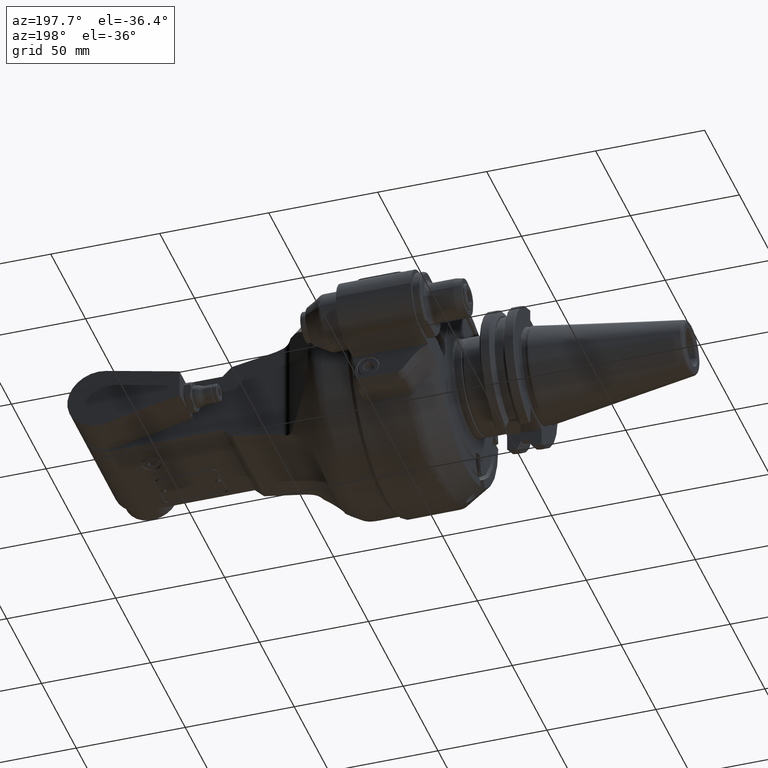
[diagram: clean part render]
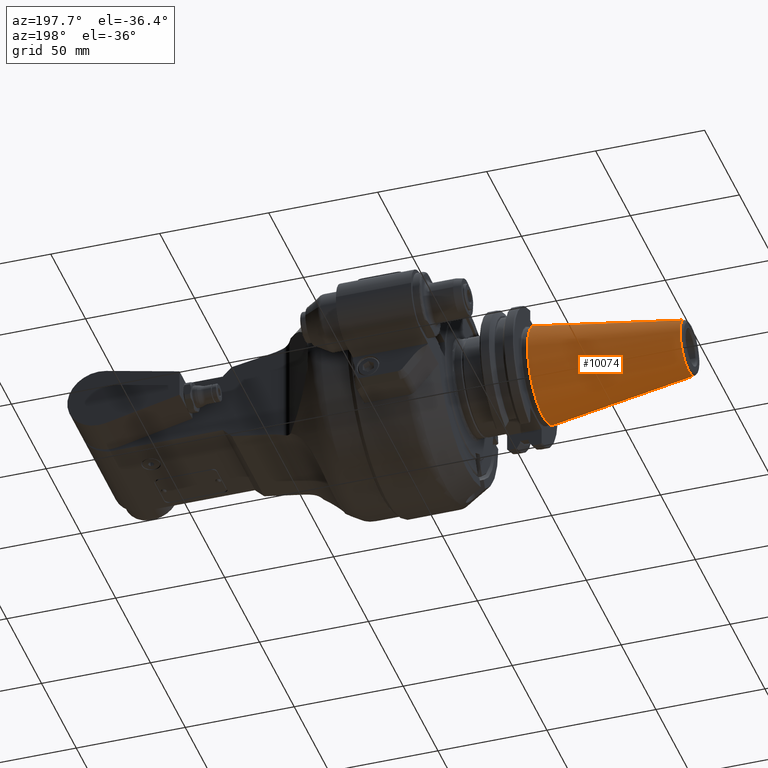
[diagram: same view with one face highlighted and labeled with its STEP entity id]
A machine part, auxiliary view. The second image highlights one B-rep face of the part: STEP entity #10074.
In plain terms, the highlighted conical surface has half-angle 8.297 deg.
Its self-contained STEP definition (entity closure, byte-faithful):
#275=CONICAL_SURFACE('',#11090,17.34203190906,0.144812411498922);
#1067=CIRCLE('',#11089,22.225);
#1068=CIRCLE('',#11091,12.45906381812);
#1069=CIRCLE('',#11092,12.45906381812);
#1595=FACE_OUTER_BOUND('',#2220,.T.);
#2220=EDGE_LOOP('',(#9271,#9272,#9273,#9274,#9275));
#3041=LINE('',#47525,#3851);
#3851=VECTOR('',#13821,17.34203190906);
#4893=VERTEX_POINT('',#47520);
#4894=VERTEX_POINT('',#47524);
#4895=VERTEX_POINT('',#47526);
#6355=EDGE_CURVE('',#4893,#4893,#1067,.T.);
#6357=EDGE_CURVE('',#4893,#4894,#3041,.T.);
#6358=EDGE_CURVE('',#4895,#4894,#1068,.T.);
#6359=EDGE_CURVE('',#4894,#4895,#1069,.T.);
#9271=ORIENTED_EDGE('',*,*,#6355,.F.);
#9272=ORIENTED_EDGE('',*,*,#6357,.T.);
#9273=ORIENTED_EDGE('',*,*,#6358,.F.);
#9274=ORIENTED_EDGE('',*,*,#6359,.F.);
#9275=ORIENTED_EDGE('',*,*,#6357,.F.);
#10074=ADVANCED_FACE('',(#1595),#275,.T.);
#11089=AXIS2_PLACEMENT_3D('',#47521,#13816,#13817);
#11090=AXIS2_PLACEMENT_3D('',#47523,#13819,#13820);
#11091=AXIS2_PLACEMENT_3D('',#47527,#13822,#13823);
#11092=AXIS2_PLACEMENT_3D('',#47528,#13824,#13825);
#13816=DIRECTION('center_axis',(1.,0.,0.));
#13817=DIRECTION('ref_axis',(0.,0.,1.));
#13819=DIRECTION('center_axis',(1.,0.,0.));
#13820=DIRECTION('ref_axis',(0.,0.,-1.));
#13821=DIRECTION('',(-0.98953299358046,1.76724869581176E-17,-0.144306807239621));
#13822=DIRECTION('center_axis',(-1.,0.,0.));
#13823=DIRECTION('ref_axis',(0.,0.,1.));
#13824=DIRECTION('center_axis',(-1.,0.,0.));
#13825=DIRECTION('ref_axis',(0.,0.,1.));
#47520=CARTESIAN_POINT('',(-86.0000000000009,2.72177751110459E-15,22.2249999999967));
#47521=CARTESIAN_POINT('Origin',(-86.,0.,0.));
#47523=CARTESIAN_POINT('Origin',(-119.48323010543,0.,0.));
#47524=CARTESIAN_POINT('',(-152.9664602109,0.,12.45906381812));
#47525=CARTESIAN_POINT('',(-119.48323010543,-2.12378638681416E-15,17.34203190906));
#47526=CARTESIAN_POINT('',(-152.9664602109,1.52579526252333E-15,-12.45906381812));
#47527=CARTESIAN_POINT('Origin',(-152.9664602109,0.,0.));
#47528=CARTESIAN_POINT('Origin',(-152.9664602109,0.,0.));